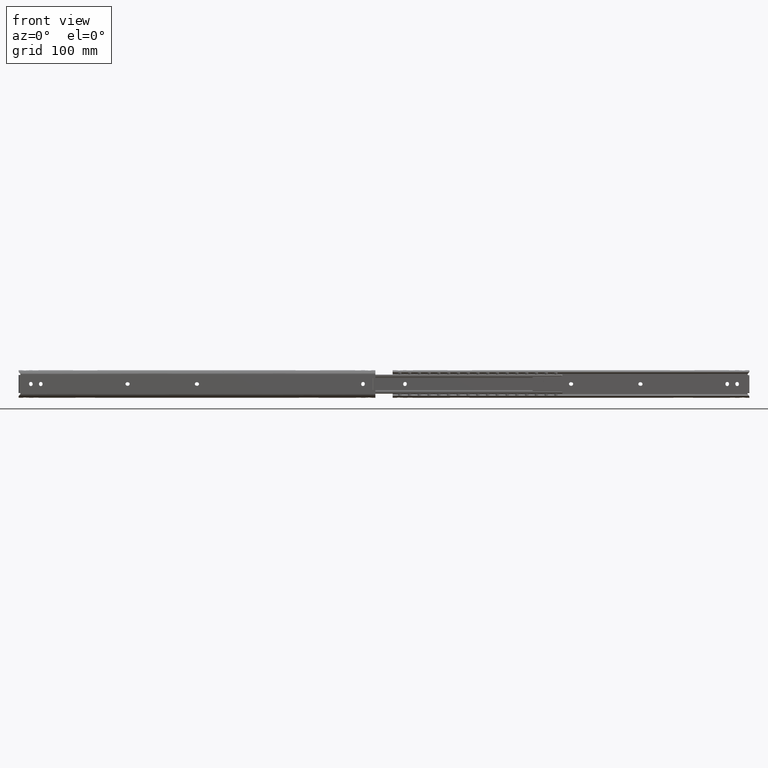
[diagram: clean part render]
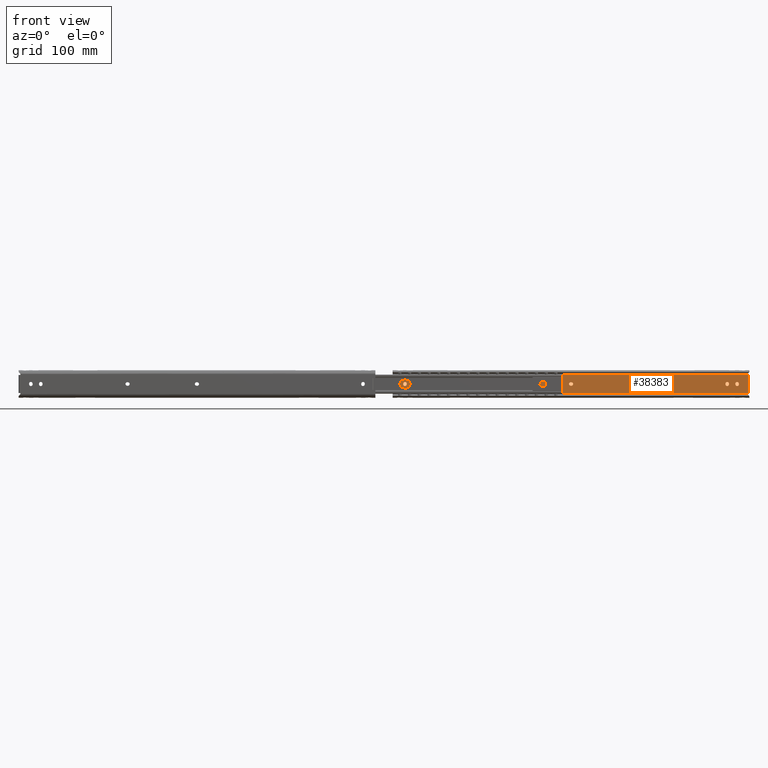
[diagram: same view with one face highlighted and labeled with its STEP entity id]
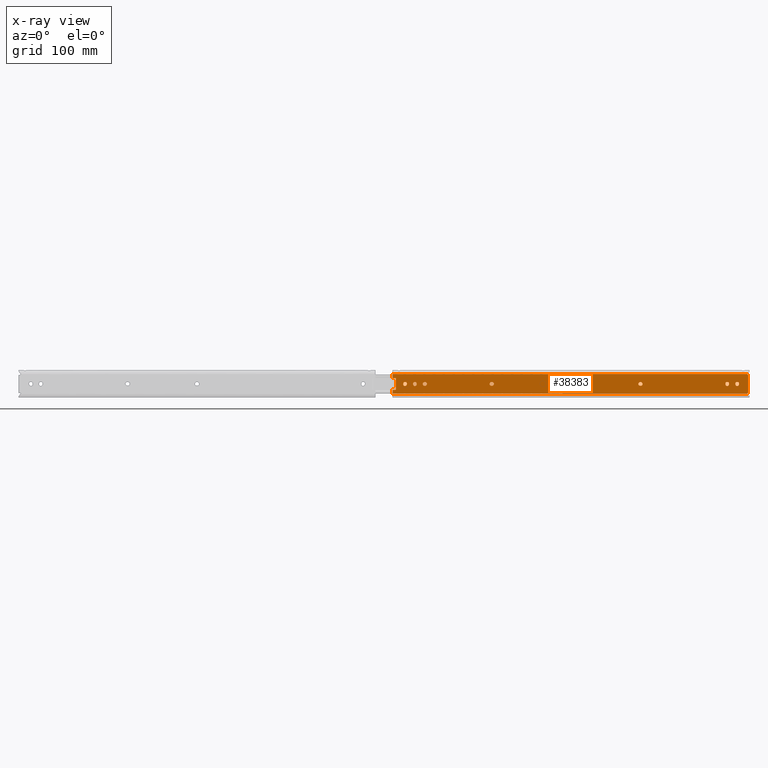
[diagram: x-ray of the same camera — body ghosted, the highlighted face saturated]
A machine part, front view. The second image highlights one B-rep face of the part: STEP entity #38383.
The next image is the same camera in x-ray: the body ghosted, the highlighted face saturated — about 0% of this face is hidden behind the body in this view.
In plain terms, the highlighted face is a freeform B-spline surface patch.
Its self-contained STEP definition (entity closure, byte-faithful):
#34844=CARTESIAN_POINT('',(-438.850000000000020,-1.600000000001045,0.400000000000006));
#34845=VERTEX_POINT('',#34844);
#34846=CARTESIAN_POINT('',(-443.350000000000020,-1.600000000001045,0.400000000000006));
#34847=VERTEX_POINT('',#34846);
#34848=CARTESIAN_POINT('',(-438.850000000000020,-1.600000000001045,0.400000000000006));
#34849=CARTESIAN_POINT('',(-438.850000000000080,-1.600000000001045,2.650000000000006));
#34850=CARTESIAN_POINT('',(-441.100000000000020,-1.600000000001045,2.650000000000005));
#34851=CARTESIAN_POINT('',(-443.349999999999970,-1.600000000001045,2.650000000000006));
#34852=CARTESIAN_POINT('',(-443.350000000000020,-1.600000000001045,0.400000000000006));
#34860=(BOUNDED_CURVE()B_SPLINE_CURVE(2,(#34848,#34849,#34850,#34851,#34852),.UNSPECIFIED.,.F.,.U.)B_SPLINE_CURVE_WITH_KNOTS((3,2,3),(0.0,0.500000000000000,1.0),.UNSPECIFIED.)CURVE()GEOMETRIC_REPRESENTATION_ITEM()RATIONAL_B_SPLINE_CURVE((1.0,0.707106781186547,1.0,0.707106781186547,1.0))REPRESENTATION_ITEM(''));
#34861=EDGE_CURVE('',#34845,#34847,#34860,.T.);
#34900=CARTESIAN_POINT('',(-438.850000000000020,-1.600000000001045,-0.400000000000092));
#34901=VERTEX_POINT('',#34900);
#34902=CARTESIAN_POINT('',(-438.850000000000020,-1.600000000001045,-0.400000000000092));
#34903=CARTESIAN_POINT('',(-438.850000000000020,-1.600000000001045,0.400000000000006));
#34904=QUASI_UNIFORM_CURVE('',1,(#34902,#34903),.UNSPECIFIED.,.F.,.U.);
#34905=EDGE_CURVE('',#34901,#34845,#34904,.T.);
#34941=CARTESIAN_POINT('',(-443.350000000000020,-1.600000000001045,-0.400000000000091));
#34942=VERTEX_POINT('',#34941);
#34943=CARTESIAN_POINT('',(-443.350000000000020,-1.600000000001045,-0.400000000000091));
#34944=CARTESIAN_POINT('',(-443.349999999999970,-1.600000000001045,-2.650000000000091));
#34945=CARTESIAN_POINT('',(-441.100000000000020,-1.600000000001045,-2.650000000000091));
#34946=CARTESIAN_POINT('',(-438.850000000000080,-1.600000000001045,-2.650000000000091));
#34947=CARTESIAN_POINT('',(-438.850000000000020,-1.600000000001045,-0.400000000000091));
#34955=(BOUNDED_CURVE()B_SPLINE_CURVE(2,(#34943,#34944,#34945,#34946,#34947),.UNSPECIFIED.,.F.,.U.)B_SPLINE_CURVE_WITH_KNOTS((3,2,3),(0.0,0.500000000000000,1.0),.UNSPECIFIED.)CURVE()GEOMETRIC_REPRESENTATION_ITEM()RATIONAL_B_SPLINE_CURVE((1.0,0.707106781186547,1.0,0.707106781186547,1.0))REPRESENTATION_ITEM(''));
#34956=EDGE_CURVE('',#34942,#34901,#34955,.T.);
#34989=CARTESIAN_POINT('',(-443.350000000000020,-1.600000000001045,0.400000000000006));
#34990=CARTESIAN_POINT('',(-443.350000000000020,-1.600000000001045,-0.400000000000091));
#34991=QUASI_UNIFORM_CURVE('',1,(#34989,#34990),.UNSPECIFIED.,.F.,.U.);
#34992=EDGE_CURVE('',#34847,#34942,#34991,.T.);
#35009=CARTESIAN_POINT('',(-430.649999999999980,-1.600000000001045,-0.400000000000091));
#35010=VERTEX_POINT('',#35009);
#35011=CARTESIAN_POINT('',(-430.649999999999980,-1.600000000001045,0.400000000000007));
#35012=VERTEX_POINT('',#35011);
#35013=CARTESIAN_POINT('',(-430.649999999999980,-1.600000000001045,-0.400000000000091));
#35014=CARTESIAN_POINT('',(-430.649999999999980,-1.600000000001045,0.400000000000007));
#35015=QUASI_UNIFORM_CURVE('',1,(#35013,#35014),.UNSPECIFIED.,.F.,.U.);
#35016=EDGE_CURVE('',#35010,#35012,#35015,.T.);
#35058=CARTESIAN_POINT('',(-426.149999999999980,-1.600000000001045,0.400000000000006));
#35059=VERTEX_POINT('',#35058);
#35060=CARTESIAN_POINT('',(-426.149999999999980,-1.600000000001045,0.400000000000006));
#35061=CARTESIAN_POINT('',(-426.149999999999980,-1.600000000001045,2.650000000000006));
#35062=CARTESIAN_POINT('',(-428.399999999999980,-1.600000000001045,2.650000000000005));
#35063=CARTESIAN_POINT('',(-430.649999999999860,-1.600000000001045,2.650000000000006));
#35064=CARTESIAN_POINT('',(-430.649999999999980,-1.600000000001045,0.400000000000006));
#35072=(BOUNDED_CURVE()B_SPLINE_CURVE(2,(#35060,#35061,#35062,#35063,#35064),.UNSPECIFIED.,.F.,.U.)B_SPLINE_CURVE_WITH_KNOTS((3,2,3),(0.0,0.500000000000000,1.0),.UNSPECIFIED.)CURVE()GEOMETRIC_REPRESENTATION_ITEM()RATIONAL_B_SPLINE_CURVE((1.0,0.707106781186547,1.0,0.707106781186547,1.0))REPRESENTATION_ITEM(''));
#35073=EDGE_CURVE('',#35059,#35012,#35072,.T.);
#35106=CARTESIAN_POINT('',(-426.149999999999980,-1.600000000001045,-0.400000000000091));
#35107=VERTEX_POINT('',#35106);
#35108=CARTESIAN_POINT('',(-426.149999999999980,-1.600000000001045,0.400000000000006));
#35109=CARTESIAN_POINT('',(-426.149999999999980,-1.600000000001045,-0.400000000000091));
#35110=QUASI_UNIFORM_CURVE('',1,(#35108,#35109),.UNSPECIFIED.,.F.,.U.);
#35111=EDGE_CURVE('',#35059,#35107,#35110,.T.);
#35147=CARTESIAN_POINT('',(-430.649999999999980,-1.600000000001045,-0.400000000000091));
#35148=CARTESIAN_POINT('',(-430.649999999999860,-1.600000000001045,-2.650000000000091));
#35149=CARTESIAN_POINT('',(-428.399999999999980,-1.600000000001045,-2.650000000000091));
#35150=CARTESIAN_POINT('',(-426.149999999999980,-1.600000000001045,-2.650000000000091));
#35151=CARTESIAN_POINT('',(-426.149999999999980,-1.600000000001045,-0.400000000000091));
#35159=(BOUNDED_CURVE()B_SPLINE_CURVE(2,(#35147,#35148,#35149,#35150,#35151),.UNSPECIFIED.,.F.,.U.)B_SPLINE_CURVE_WITH_KNOTS((3,2,3),(0.0,0.500000000000000,1.0),.UNSPECIFIED.)CURVE()GEOMETRIC_REPRESENTATION_ITEM()RATIONAL_B_SPLINE_CURVE((1.0,0.707106781186547,1.0,0.707106781186547,1.0))REPRESENTATION_ITEM(''));
#35160=EDGE_CURVE('',#35010,#35107,#35159,.T.);
#35200=CARTESIAN_POINT('',(-415.300000000000010,-1.600000000001045,-2.250000000000000));
#35201=VERTEX_POINT('',#35200);
#35202=CARTESIAN_POINT('',(-415.300000000000010,-1.600000000001045,2.250000000000000));
#35203=VERTEX_POINT('',#35202);
#35204=CARTESIAN_POINT('',(-415.300000000000010,-1.600000000001045,-2.250000000000000));
#35205=CARTESIAN_POINT('',(-413.050000000000070,-1.600000000001045,-2.250000000000000));
#35206=CARTESIAN_POINT('',(-413.050000000000010,-1.600000000001045,0.0));
#35207=CARTESIAN_POINT('',(-413.050000000000070,-1.600000000001045,2.250000000000000));
#35208=CARTESIAN_POINT('',(-415.300000000000010,-1.600000000001045,2.250000000000000));
#35216=(BOUNDED_CURVE()B_SPLINE_CURVE(2,(#35204,#35205,#35206,#35207,#35208),.UNSPECIFIED.,.F.,.U.)B_SPLINE_CURVE_WITH_KNOTS((3,2,3),(0.0,0.500000000000000,1.0),.UNSPECIFIED.)CURVE()GEOMETRIC_REPRESENTATION_ITEM()RATIONAL_B_SPLINE_CURVE((1.0,0.707106781186547,1.0,0.707106781186547,1.0))REPRESENTATION_ITEM(''));
#35217=EDGE_CURVE('',#35201,#35203,#35216,.T.);
#35256=CARTESIAN_POINT('',(-416.100000000000020,-1.600000000001045,2.250000000000000));
#35257=VERTEX_POINT('',#35256);
#35258=CARTESIAN_POINT('',(-416.100000000000020,-1.600000000001045,2.250000000000000));
#35259=CARTESIAN_POINT('',(-415.300000000000010,-1.600000000001045,2.250000000000000));
#35260=QUASI_UNIFORM_CURVE('',1,(#35258,#35259),.UNSPECIFIED.,.F.,.U.);
#35261=EDGE_CURVE('',#35257,#35203,#35260,.T.);
#35297=CARTESIAN_POINT('',(-416.100000000000020,-1.600000000001045,-2.250000000000000));
#35298=VERTEX_POINT('',#35297);
#35299=CARTESIAN_POINT('',(-416.100000000000020,-1.600000000001045,2.250000000000000));
#35300=CARTESIAN_POINT('',(-418.349999999999970,-1.600000000001045,2.250000000000000));
#35301=CARTESIAN_POINT('',(-418.350000000000020,-1.600000000001045,0.0));
#35302=CARTESIAN_POINT('',(-418.349999999999970,-1.600000000001045,-2.250000000000000));
#35303=CARTESIAN_POINT('',(-416.100000000000020,-1.600000000001045,-2.250000000000000));
#35311=(BOUNDED_CURVE()B_SPLINE_CURVE(2,(#35299,#35300,#35301,#35302,#35303),.UNSPECIFIED.,.F.,.U.)B_SPLINE_CURVE_WITH_KNOTS((3,2,3),(0.0,0.500000000000000,1.0),.UNSPECIFIED.)CURVE()GEOMETRIC_REPRESENTATION_ITEM()RATIONAL_B_SPLINE_CURVE((1.0,0.707106781186547,1.0,0.707106781186547,1.0))REPRESENTATION_ITEM(''));
#35312=EDGE_CURVE('',#35257,#35298,#35311,.T.);
#35345=CARTESIAN_POINT('',(-415.300000000000010,-1.600000000001045,-2.250000000000000));
#35346=CARTESIAN_POINT('',(-416.100000000000020,-1.600000000001045,-2.250000000000000));
#35347=QUASI_UNIFORM_CURVE('',1,(#35345,#35346),.UNSPECIFIED.,.F.,.U.);
#35348=EDGE_CURVE('',#35201,#35298,#35347,.T.);
#35378=CARTESIAN_POINT('',(-330.399999999999980,-1.600000000001045,2.250000000000000));
#35379=VERTEX_POINT('',#35378);
#35380=CARTESIAN_POINT('',(-330.399999999999980,-1.600000000001045,-2.250000000000000));
#35381=VERTEX_POINT('',#35380);
#35382=CARTESIAN_POINT('',(-330.399999999999980,-1.600000000001045,2.250000000000000));
#35383=CARTESIAN_POINT('',(-332.649999999999980,-1.600000000001045,2.250000000000000));
#35384=CARTESIAN_POINT('',(-332.649999999999980,-1.600000000001045,0.0));
#35385=CARTESIAN_POINT('',(-332.649999999999980,-1.600000000001045,-2.250000000000000));
#35386=CARTESIAN_POINT('',(-330.399999999999980,-1.600000000001045,-2.250000000000000));
#35394=(BOUNDED_CURVE()B_SPLINE_CURVE(2,(#35382,#35383,#35384,#35385,#35386),.UNSPECIFIED.,.F.,.U.)B_SPLINE_CURVE_WITH_KNOTS((3,2,3),(0.0,0.500000000000000,1.0),.UNSPECIFIED.)CURVE()GEOMETRIC_REPRESENTATION_ITEM()RATIONAL_B_SPLINE_CURVE((1.0,0.707106781186547,1.0,0.707106781186547,1.0))REPRESENTATION_ITEM(''));
#35395=EDGE_CURVE('',#35379,#35381,#35394,.T.);
#35434=CARTESIAN_POINT('',(-329.600000000000020,-1.600000000001045,2.250000000000000));
#35435=VERTEX_POINT('',#35434);
#35436=CARTESIAN_POINT('',(-329.600000000000020,-1.600000000001045,2.250000000000000));
#35437=CARTESIAN_POINT('',(-330.399999999999980,-1.600000000001045,2.250000000000000));
#35438=QUASI_UNIFORM_CURVE('',1,(#35436,#35437),.UNSPECIFIED.,.F.,.U.);
#35439=EDGE_CURVE('',#35435,#35379,#35438,.T.);
#35475=CARTESIAN_POINT('',(-329.600000000000020,-1.600000000001045,-2.250000000000000));
#35476=VERTEX_POINT('',#35475);
#35477=CARTESIAN_POINT('',(-329.600000000000020,-1.600000000001045,-2.250000000000000));
#35478=CARTESIAN_POINT('',(-327.349999999999970,-1.600000000001045,-2.250000000000000));
#35479=CARTESIAN_POINT('',(-327.350000000000020,-1.600000000001045,0.0));
#35480=CARTESIAN_POINT('',(-327.349999999999970,-1.600000000001045,2.250000000000000));
#35481=CARTESIAN_POINT('',(-329.600000000000020,-1.600000000001045,2.250000000000000));
#35489=(BOUNDED_CURVE()B_SPLINE_CURVE(2,(#35477,#35478,#35479,#35480,#35481),.UNSPECIFIED.,.F.,.U.)B_SPLINE_CURVE_WITH_KNOTS((3,2,3),(0.0,0.500000000000000,1.0),.UNSPECIFIED.)CURVE()GEOMETRIC_REPRESENTATION_ITEM()RATIONAL_B_SPLINE_CURVE((1.0,0.707106781186547,1.0,0.707106781186547,1.0))REPRESENTATION_ITEM(''));
#35490=EDGE_CURVE('',#35476,#35435,#35489,.T.);
#35523=CARTESIAN_POINT('',(-330.399999999999980,-1.600000000001045,-2.250000000000000));
#35524=CARTESIAN_POINT('',(-329.600000000000020,-1.600000000001045,-2.250000000000000));
#35525=QUASI_UNIFORM_CURVE('',1,(#35523,#35524),.UNSPECIFIED.,.F.,.U.);
#35526=EDGE_CURVE('',#35381,#35476,#35525,.T.);
#35543=CARTESIAN_POINT('',(-139.899999999997990,-1.600000000001045,2.250000000000000));
#35544=VERTEX_POINT('',#35543);
#35545=CARTESIAN_POINT('',(-139.099999999998000,-1.600000000001045,2.250000000000000));
#35546=VERTEX_POINT('',#35545);
#35547=CARTESIAN_POINT('',(-139.899999999997990,-1.600000000001045,2.250000000000000));
#35548=CARTESIAN_POINT('',(-139.099999999998000,-1.600000000001045,2.250000000000000));
#35549=QUASI_UNIFORM_CURVE('',1,(#35547,#35548),.UNSPECIFIED.,.F.,.U.);
#35550=EDGE_CURVE('',#35544,#35546,#35549,.T.);
#35592=CARTESIAN_POINT('',(-139.099999999998000,-1.600000000001045,-2.250000000000000));
#35593=VERTEX_POINT('',#35592);
#35594=CARTESIAN_POINT('',(-139.099999999998000,-1.600000000001045,-2.250000000000000));
#35595=CARTESIAN_POINT('',(-136.849999999998000,-1.600000000001045,-2.250000000000000));
#35596=CARTESIAN_POINT('',(-136.849999999998000,-1.600000000001045,0.0));
#35597=CARTESIAN_POINT('',(-136.849999999998000,-1.600000000001045,2.250000000000000));
#35598=CARTESIAN_POINT('',(-139.099999999998000,-1.600000000001045,2.250000000000000));
#35606=(BOUNDED_CURVE()B_SPLINE_CURVE(2,(#35594,#35595,#35596,#35597,#35598),.UNSPECIFIED.,.F.,.U.)B_SPLINE_CURVE_WITH_KNOTS((3,2,3),(0.0,0.500000000000000,1.0),.UNSPECIFIED.)CURVE()GEOMETRIC_REPRESENTATION_ITEM()RATIONAL_B_SPLINE_CURVE((1.0,0.707106781186547,1.0,0.707106781186547,1.0))REPRESENTATION_ITEM(''));
#35607=EDGE_CURVE('',#35593,#35546,#35606,.T.);
#35640=CARTESIAN_POINT('',(-139.899999999997990,-1.600000000001045,-2.250000000000200));
#35641=VERTEX_POINT('',#35640);
#35642=CARTESIAN_POINT('',(-139.099999999998000,-1.600000000001045,-2.250000000000000));
#35643=CARTESIAN_POINT('',(-139.899999999997990,-1.600000000001045,-2.250000000000200));
#35644=QUASI_UNIFORM_CURVE('',1,(#35642,#35643),.UNSPECIFIED.,.F.,.U.);
#35645=EDGE_CURVE('',#35593,#35641,#35644,.T.);
#35681=CARTESIAN_POINT('',(-139.899999999997990,-1.600000000001045,2.250000000000000));
#35682=CARTESIAN_POINT('',(-142.149999999997990,-1.600000000001045,2.250000000000000));
#35683=CARTESIAN_POINT('',(-142.149999999997990,-1.600000000001045,0.0));
#35684=CARTESIAN_POINT('',(-142.149999999997990,-1.600000000001045,-2.250000000000000));
#35685=CARTESIAN_POINT('',(-139.899999999997990,-1.600000000001045,-2.250000000000000));
#35693=(BOUNDED_CURVE()B_SPLINE_CURVE(2,(#35681,#35682,#35683,#35684,#35685),.UNSPECIFIED.,.F.,.U.)B_SPLINE_CURVE_WITH_KNOTS((3,2,3),(0.0,0.500000000000000,1.0),.UNSPECIFIED.)CURVE()GEOMETRIC_REPRESENTATION_ITEM()RATIONAL_B_SPLINE_CURVE((1.0,0.707106781186547,1.0,0.707106781186547,1.0))REPRESENTATION_ITEM(''));
#35694=EDGE_CURVE('',#35544,#35641,#35693,.T.);
#35734=CARTESIAN_POINT('',(-228.800000000000010,-1.600000000001045,2.250000000000000));
#35735=VERTEX_POINT('',#35734);
#35736=CARTESIAN_POINT('',(-228.800000000000010,-1.600000000001045,-2.250000000000000));
#35737=VERTEX_POINT('',#35736);
#35738=CARTESIAN_POINT('',(-228.800000000000010,-1.600000000001045,2.250000000000000));
#35739=CARTESIAN_POINT('',(-231.050000000000040,-1.600000000001045,2.250000000000000));
#35740=CARTESIAN_POINT('',(-231.050000000000010,-1.600000000001045,0.0));
#35741=CARTESIAN_POINT('',(-231.050000000000040,-1.600000000001045,-2.250000000000000));
#35742=CARTESIAN_POINT('',(-228.800000000000010,-1.600000000001045,-2.250000000000000));
#35750=(BOUNDED_CURVE()B_SPLINE_CURVE(2,(#35738,#35739,#35740,#35741,#35742),.UNSPECIFIED.,.F.,.U.)B_SPLINE_CURVE_WITH_KNOTS((3,2,3),(0.0,0.500000000000000,1.0),.UNSPECIFIED.)CURVE()GEOMETRIC_REPRESENTATION_ITEM()RATIONAL_B_SPLINE_CURVE((1.0,0.707106781186547,1.0,0.707106781186547,1.0))REPRESENTATION_ITEM(''));
#35751=EDGE_CURVE('',#35735,#35737,#35750,.T.);
#35790=CARTESIAN_POINT('',(-228.0,-1.600000000001045,2.250000000000000));
#35791=VERTEX_POINT('',#35790);
#35792=CARTESIAN_POINT('',(-228.0,-1.600000000001045,2.250000000000000));
#35793=CARTESIAN_POINT('',(-228.800000000000010,-1.600000000001045,2.250000000000000));
#35794=QUASI_UNIFORM_CURVE('',1,(#35792,#35793),.UNSPECIFIED.,.F.,.U.);
#35795=EDGE_CURVE('',#35791,#35735,#35794,.T.);
#35831=CARTESIAN_POINT('',(-228.0,-1.600000000001045,-2.250000000000000));
#35832=VERTEX_POINT('',#35831);
#35833=CARTESIAN_POINT('',(-228.0,-1.600000000001045,-2.250000000000000));
#35834=CARTESIAN_POINT('',(-225.750000000000030,-1.600000000001045,-2.250000000000000));
#35835=CARTESIAN_POINT('',(-225.750000000000000,-1.600000000001045,0.0));
#35836=CARTESIAN_POINT('',(-225.750000000000030,-1.600000000001045,2.250000000000000));
#35837=CARTESIAN_POINT('',(-228.0,-1.600000000001045,2.250000000000000));
#35845=(BOUNDED_CURVE()B_SPLINE_CURVE(2,(#35833,#35834,#35835,#35836,#35837),.UNSPECIFIED.,.F.,.U.)B_SPLINE_CURVE_WITH_KNOTS((3,2,3),(0.0,0.500000000000000,1.0),.UNSPECIFIED.)CURVE()GEOMETRIC_REPRESENTATION_ITEM()RATIONAL_B_SPLINE_CURVE((1.0,0.707106781186547,1.0,0.707106781186547,1.0))REPRESENTATION_ITEM(''));
#35846=EDGE_CURVE('',#35832,#35791,#35845,.T.);
#35879=CARTESIAN_POINT('',(-228.800000000000010,-1.600000000001045,-2.250000000000000));
#35880=CARTESIAN_POINT('',(-228.0,-1.600000000001045,-2.250000000000000));
#35881=QUASI_UNIFORM_CURVE('',1,(#35879,#35880),.UNSPECIFIED.,.F.,.U.);
#35882=EDGE_CURVE('',#35737,#35832,#35881,.T.);
#35912=CARTESIAN_POINT('',(-13.449999999998001,-1.600000000001045,0.400000000000006));
#35913=VERTEX_POINT('',#35912);
#35914=CARTESIAN_POINT('',(-17.949999999997999,-1.600000000001045,0.400000000000006));
#35915=VERTEX_POINT('',#35914);
#35916=CARTESIAN_POINT('',(-13.449999999998001,-1.600000000001045,0.400000000000006));
#35917=CARTESIAN_POINT('',(-13.449999999998001,-1.600000000001045,2.650000000000006));
#35918=CARTESIAN_POINT('',(-15.699999999998001,-1.600000000001045,2.650000000000005));
#35919=CARTESIAN_POINT('',(-17.949999999997996,-1.600000000001045,2.650000000000006));
#35920=CARTESIAN_POINT('',(-17.949999999997999,-1.600000000001045,0.400000000000006));
#35928=(BOUNDED_CURVE()B_SPLINE_CURVE(2,(#35916,#35917,#35918,#35919,#35920),.UNSPECIFIED.,.F.,.U.)B_SPLINE_CURVE_WITH_KNOTS((3,2,3),(0.0,0.500000000000000,1.0),.UNSPECIFIED.)CURVE()GEOMETRIC_REPRESENTATION_ITEM()RATIONAL_B_SPLINE_CURVE((1.0,0.707106781186547,1.0,0.707106781186547,1.0))REPRESENTATION_ITEM(''));
#35929=EDGE_CURVE('',#35913,#35915,#35928,.T.);
#35968=CARTESIAN_POINT('',(-17.949999999997999,-1.600000000001045,-0.400000000000091));
#35969=VERTEX_POINT('',#35968);
#35970=CARTESIAN_POINT('',(-17.949999999997999,-1.600000000001045,-0.400000000000091));
#35971=CARTESIAN_POINT('',(-17.949999999997999,-1.600000000001045,0.400000000000006));
#35972=QUASI_UNIFORM_CURVE('',1,(#35970,#35971),.UNSPECIFIED.,.F.,.U.);
#35973=EDGE_CURVE('',#35969,#35915,#35972,.T.);
#36009=CARTESIAN_POINT('',(-13.449999999998001,-1.600000000001045,-0.400000000000091));
#36010=VERTEX_POINT('',#36009);
#36011=CARTESIAN_POINT('',(-17.949999999997999,-1.600000000001045,-0.400000000000091));
#36012=CARTESIAN_POINT('',(-17.949999999997996,-1.600000000001045,-2.650000000000091));
#36013=CARTESIAN_POINT('',(-15.699999999998001,-1.600000000001045,-2.650000000000091));
#36014=CARTESIAN_POINT('',(-13.449999999998001,-1.600000000001045,-2.650000000000091));
#36015=CARTESIAN_POINT('',(-13.449999999998001,-1.600000000001045,-0.400000000000091));
#36023=(BOUNDED_CURVE()B_SPLINE_CURVE(2,(#36011,#36012,#36013,#36014,#36015),.UNSPECIFIED.,.F.,.U.)B_SPLINE_CURVE_WITH_KNOTS((3,2,3),(0.0,0.500000000000000,1.0),.UNSPECIFIED.)CURVE()GEOMETRIC_REPRESENTATION_ITEM()RATIONAL_B_SPLINE_CURVE((1.0,0.707106781186547,1.0,0.707106781186547,1.0))REPRESENTATION_ITEM(''));
#36024=EDGE_CURVE('',#35969,#36010,#36023,.T.);
#36057=CARTESIAN_POINT('',(-13.449999999998001,-1.600000000001045,0.400000000000006));
#36058=CARTESIAN_POINT('',(-13.449999999998001,-1.600000000001045,-0.400000000000091));
#36059=QUASI_UNIFORM_CURVE('',1,(#36057,#36058),.UNSPECIFIED.,.F.,.U.);
#36060=EDGE_CURVE('',#35913,#36010,#36059,.T.);
#36077=CARTESIAN_POINT('',(-26.149999999998052,-1.600000000001045,0.400000000000006));
#36078=VERTEX_POINT('',#36077);
#36079=CARTESIAN_POINT('',(-26.149999999997998,-1.600000000001045,-0.400000000000092));
#36080=VERTEX_POINT('',#36079);
#36081=CARTESIAN_POINT('',(-26.149999999998052,-1.600000000001045,0.400000000000006));
#36082=CARTESIAN_POINT('',(-26.149999999997998,-1.600000000001045,-0.400000000000092));
#36083=QUASI_UNIFORM_CURVE('',1,(#36081,#36082),.UNSPECIFIED.,.F.,.U.);
#36084=EDGE_CURVE('',#36078,#36080,#36083,.T.);
#36126=CARTESIAN_POINT('',(-30.649999999998052,-1.600000000001045,-0.400000000000091));
#36127=VERTEX_POINT('',#36126);
#36128=CARTESIAN_POINT('',(-30.649999999998052,-1.600000000001045,-0.400000000000091));
#36129=CARTESIAN_POINT('',(-30.649999999998052,-1.600000000001045,-2.650000000000091));
#36130=CARTESIAN_POINT('',(-28.399999999998052,-1.600000000001045,-2.650000000000091));
#36131=CARTESIAN_POINT('',(-26.149999999998055,-1.600000000001045,-2.650000000000091));
#36132=CARTESIAN_POINT('',(-26.149999999998052,-1.600000000001045,-0.400000000000091));
#36140=(BOUNDED_CURVE()B_SPLINE_CURVE(2,(#36128,#36129,#36130,#36131,#36132),.UNSPECIFIED.,.F.,.U.)B_SPLINE_CURVE_WITH_KNOTS((3,2,3),(0.0,0.500000000000000,1.0),.UNSPECIFIED.)CURVE()GEOMETRIC_REPRESENTATION_ITEM()RATIONAL_B_SPLINE_CURVE((1.0,0.707106781186547,1.0,0.707106781186547,1.0))REPRESENTATION_ITEM(''));
#36141=EDGE_CURVE('',#36127,#36080,#36140,.T.);
#36174=CARTESIAN_POINT('',(-30.649999999998052,-1.600000000001045,0.400000000000006));
#36175=VERTEX_POINT('',#36174);
#36176=CARTESIAN_POINT('',(-30.649999999998052,-1.600000000001045,-0.400000000000091));
#36177=CARTESIAN_POINT('',(-30.649999999998052,-1.600000000001045,0.400000000000006));
#36178=QUASI_UNIFORM_CURVE('',1,(#36176,#36177),.UNSPECIFIED.,.F.,.U.);
#36179=EDGE_CURVE('',#36127,#36175,#36178,.T.);
#36215=CARTESIAN_POINT('',(-26.149999999998052,-1.600000000001045,0.400000000000006));
#36216=CARTESIAN_POINT('',(-26.149999999998055,-1.600000000001045,2.650000000000006));
#36217=CARTESIAN_POINT('',(-28.399999999998052,-1.600000000001045,2.650000000000005));
#36218=CARTESIAN_POINT('',(-30.649999999998052,-1.600000000001045,2.650000000000006));
#36219=CARTESIAN_POINT('',(-30.649999999998052,-1.600000000001045,0.400000000000006));
#36227=(BOUNDED_CURVE()B_SPLINE_CURVE(2,(#36215,#36216,#36217,#36218,#36219),.UNSPECIFIED.,.F.,.U.)B_SPLINE_CURVE_WITH_KNOTS((3,2,3),(0.0,0.500000000000000,1.0),.UNSPECIFIED.)CURVE()GEOMETRIC_REPRESENTATION_ITEM()RATIONAL_B_SPLINE_CURVE((1.0,0.707106781186547,1.0,0.707106781186547,1.0))REPRESENTATION_ITEM(''));
#36228=EDGE_CURVE('',#36078,#36175,#36227,.T.);
#36699=CARTESIAN_POINT('',(-454.500000000000000,-1.600000000001045,7.500000000000000));
#36700=VERTEX_POINT('',#36699);
#36721=CARTESIAN_POINT('',(-454.500000000000000,-1.600000000000935,-7.500000000000200));
#36722=VERTEX_POINT('',#36721);
#36751=CARTESIAN_POINT('',(-1.599999999999045,-1.600000000001045,-11.500000000000000));
#36752=VERTEX_POINT('',#36751);
#36753=CARTESIAN_POINT('',(-1.599999999999000,-1.600000000001045,11.500000000000000));
#36754=VERTEX_POINT('',#36753);
#36755=CARTESIAN_POINT('',(-1.599999999999045,-1.600000000001045,-11.500000000000000));
#36756=CARTESIAN_POINT('',(-1.599999999999000,-1.600000000001045,11.500000000000000));
#36757=QUASI_UNIFORM_CURVE('',1,(#36755,#36756),.UNSPECIFIED.,.F.,.U.);
#36758=EDGE_CURVE('',#36752,#36754,#36757,.T.);
#36925=CARTESIAN_POINT('',(-452.899999999999980,-1.600000000001045,-7.500000000000200));
#36926=VERTEX_POINT('',#36925);
#36932=CARTESIAN_POINT('',(-452.899999999999980,-1.600000000001045,7.500000000000000));
#36933=VERTEX_POINT('',#36932);
#36934=CARTESIAN_POINT('',(-452.899999999999980,-1.600000000001045,-7.500000000000200));
#36935=CARTESIAN_POINT('',(-452.899999999999980,-1.600000000001045,7.500000000000000));
#36936=QUASI_UNIFORM_CURVE('',1,(#36934,#36935),.UNSPECIFIED.,.F.,.U.);
#36937=EDGE_CURVE('',#36926,#36933,#36936,.T.);
#36959=CARTESIAN_POINT('',(-452.899999999999980,-1.600000000001045,-7.500000000000200));
#36960=CARTESIAN_POINT('',(-454.500000000000000,-1.600000000000935,-7.500000000000200));
#36961=QUASI_UNIFORM_CURVE('',1,(#36959,#36960),.UNSPECIFIED.,.F.,.U.);
#36962=EDGE_CURVE('',#36926,#36722,#36961,.T.);
#37007=CARTESIAN_POINT('',(-454.500000000000000,-1.600000000001045,7.500000000000000));
#37008=CARTESIAN_POINT('',(-452.899999999999980,-1.600000000001045,7.500000000000000));
#37009=QUASI_UNIFORM_CURVE('',1,(#37007,#37008),.UNSPECIFIED.,.F.,.U.);
#37010=EDGE_CURVE('',#36700,#36933,#37009,.T.);
#37057=CARTESIAN_POINT('',(-2.360134746259245,-1.600000000000045,12.578915999999900));
#37058=VERTEX_POINT('',#37057);
#37059=CARTESIAN_POINT('',(-2.360134746259245,-1.600000000000045,12.578915999999900));
#37060=CARTESIAN_POINT('',(-2.501066018638392,-1.600000000001046,12.184613891433314));
#37061=CARTESIAN_POINT('',(-2.259898584542075,-1.600000000001045,11.842306945716651));
#37062=CARTESIAN_POINT('',(-2.018731150445758,-1.600000000001046,11.500000000000002));
#37063=CARTESIAN_POINT('',(-1.599999999999000,-1.600000000001045,11.500000000000000));
#37071=(BOUNDED_CURVE()B_SPLINE_CURVE(2,(#37059,#37060,#37061,#37062,#37063),.UNSPECIFIED.,.F.,.U.)B_SPLINE_CURVE_WITH_KNOTS((3,2,3),(0.0,0.500000000000000,1.0),.UNSPECIFIED.)CURVE()GEOMETRIC_REPRESENTATION_ITEM()RATIONAL_B_SPLINE_CURVE((1.0,0.887679040060814,1.0,0.887679040060814,1.0))REPRESENTATION_ITEM(''));
#37072=EDGE_CURVE('',#37058,#36754,#37071,.T.);
#37334=CARTESIAN_POINT('',(-2.360134746259215,-1.600000000000045,-12.578916000000000));
#37335=VERTEX_POINT('',#37334);
#37336=CARTESIAN_POINT('',(-1.599999999999045,-1.600000000001045,-11.500000000000000));
#37337=CARTESIAN_POINT('',(-2.018731150445805,-1.600000000001045,-11.499999999999995));
#37338=CARTESIAN_POINT('',(-2.259898584542118,-1.600000000001045,-11.842306945716709));
#37339=CARTESIAN_POINT('',(-2.501066018638415,-1.600000000001045,-12.184613891433402));
#37340=CARTESIAN_POINT('',(-2.360134746259215,-1.600000000000045,-12.578916000000000));
#37348=(BOUNDED_CURVE()B_SPLINE_CURVE(2,(#37336,#37337,#37338,#37339,#37340),.UNSPECIFIED.,.F.,.U.)B_SPLINE_CURVE_WITH_KNOTS((3,2,3),(0.0,0.500000000000000,1.0),.UNSPECIFIED.)CURVE()GEOMETRIC_REPRESENTATION_ITEM()RATIONAL_B_SPLINE_CURVE((1.0,0.887679040060793,1.0,0.887679040060793,1.0))REPRESENTATION_ITEM(''));
#37349=EDGE_CURVE('',#36752,#37335,#37348,.T.);
#37577=CARTESIAN_POINT('',(-457.0,-1.600000000001045,-7.500000000000200));
#37578=VERTEX_POINT('',#37577);
#37579=CARTESIAN_POINT('',(-454.500000000000000,-1.600000000000935,-7.500000000000200));
#37580=CARTESIAN_POINT('',(-457.0,-1.600000000001045,-7.500000000000200));
#37581=QUASI_UNIFORM_CURVE('',1,(#37579,#37580),.UNSPECIFIED.,.F.,.U.);
#37582=EDGE_CURVE('',#36722,#37578,#37581,.T.);
#37617=CARTESIAN_POINT('',(-457.0,-1.600000000001045,7.500000000000000));
#37618=VERTEX_POINT('',#37617);
#37619=CARTESIAN_POINT('',(-457.0,-1.600000000001045,7.500000000000000));
#37620=CARTESIAN_POINT('',(-454.500000000000000,-1.600000000001045,7.500000000000000));
#37621=QUASI_UNIFORM_CURVE('',1,(#37619,#37620),.UNSPECIFIED.,.F.,.U.);
#37622=EDGE_CURVE('',#37618,#36700,#37621,.T.);
#37896=CARTESIAN_POINT('',(-457.0,-1.600000000001045,-12.578916000000000));
#37897=VERTEX_POINT('',#37896);
#37898=CARTESIAN_POINT('',(-457.0,-1.600000000001045,-12.578916000000000));
#37899=CARTESIAN_POINT('',(-2.360134746259215,-1.600000000000045,-12.578916000000000));
#37900=QUASI_UNIFORM_CURVE('',1,(#37898,#37899),.UNSPECIFIED.,.F.,.U.);
#37901=EDGE_CURVE('',#37897,#37335,#37900,.T.);
#37934=CARTESIAN_POINT('',(-457.0,-1.600000000000045,12.578915999999900));
#37935=VERTEX_POINT('',#37934);
#37936=CARTESIAN_POINT('',(-457.0,-1.600000000000045,12.578915999999900));
#37937=CARTESIAN_POINT('',(-2.360134746259245,-1.600000000000045,12.578915999999900));
#37938=QUASI_UNIFORM_CURVE('',1,(#37936,#37937),.UNSPECIFIED.,.F.,.U.);
#37939=EDGE_CURVE('',#37935,#37058,#37938,.T.);
#38010=CARTESIAN_POINT('',(-457.0,-1.600000000001045,-7.500000000000200));
#38011=CARTESIAN_POINT('',(-457.0,-1.600000000001045,-12.578916000000000));
#38012=QUASI_UNIFORM_CURVE('',1,(#38010,#38011),.UNSPECIFIED.,.F.,.U.);
#38013=EDGE_CURVE('',#37578,#37897,#38012,.T.);
#38076=CARTESIAN_POINT('',(-457.0,-1.600000000000045,12.578915999999900));
#38077=CARTESIAN_POINT('',(-457.0,-1.600000000001045,7.500000000000000));
#38078=QUASI_UNIFORM_CURVE('',1,(#38076,#38077),.UNSPECIFIED.,.F.,.U.);
#38079=EDGE_CURVE('',#37935,#37618,#38078,.T.);
#38316=CARTESIAN_POINT('',(-479.747229117346480,-1.600000000001045,13.835549333593960));
#38317=CARTESIAN_POINT('',(-479.747229117346480,-1.600000000001045,-13.835548433879881));
#38318=CARTESIAN_POINT('',(21.147241332127319,-1.600000000001045,13.835549333593960));
#38319=CARTESIAN_POINT('',(21.147241332127319,-1.600000000001045,-13.835548433879881));
#38320=B_SPLINE_SURFACE_WITH_KNOTS('',1,1,((#38316,#38318),(#38317,#38319)),.UNSPECIFIED.,.F.,.F.,.U.,(2,2),(2,2),(0.0,27.671097767473839),(0.0,500.894470449473770),.UNSPECIFIED.);
#38321=ORIENTED_EDGE('',*,*,#37349,.F.);
#38322=ORIENTED_EDGE('',*,*,#36758,.T.);
#38323=ORIENTED_EDGE('',*,*,#37072,.F.);
#38324=ORIENTED_EDGE('',*,*,#37939,.F.);
#38325=ORIENTED_EDGE('',*,*,#38079,.T.);
#38326=ORIENTED_EDGE('',*,*,#37622,.T.);
#38327=ORIENTED_EDGE('',*,*,#37010,.T.);
#38328=ORIENTED_EDGE('',*,*,#36937,.F.);
#38329=ORIENTED_EDGE('',*,*,#36962,.T.);
#38330=ORIENTED_EDGE('',*,*,#37582,.T.);
#38331=ORIENTED_EDGE('',*,*,#38013,.T.);
#38332=ORIENTED_EDGE('',*,*,#37901,.T.);
#38333=EDGE_LOOP('',(#38321,#38322,#38323,#38324,#38325,#38326,#38327,#38328,#38329,#38330,#38331,#38332));
#38334=FACE_OUTER_BOUND('',#38333,.T.);
#38335=ORIENTED_EDGE('',*,*,#35160,.F.);
#38336=ORIENTED_EDGE('',*,*,#35016,.T.);
#38337=ORIENTED_EDGE('',*,*,#35073,.F.);
#38338=ORIENTED_EDGE('',*,*,#35111,.T.);
#38339=EDGE_LOOP('',(#38335,#38336,#38337,#38338));
#38340=FACE_BOUND('',#38339,.T.);
#38341=ORIENTED_EDGE('',*,*,#35929,.F.);
#38342=ORIENTED_EDGE('',*,*,#36060,.T.);
#38343=ORIENTED_EDGE('',*,*,#36024,.F.);
#38344=ORIENTED_EDGE('',*,*,#35973,.T.);
#38345=EDGE_LOOP('',(#38341,#38342,#38343,#38344));
#38346=FACE_BOUND('',#38345,.T.);
#38347=ORIENTED_EDGE('',*,*,#36228,.F.);
#38348=ORIENTED_EDGE('',*,*,#36084,.T.);
#38349=ORIENTED_EDGE('',*,*,#36141,.F.);
#38350=ORIENTED_EDGE('',*,*,#36179,.T.);
#38351=EDGE_LOOP('',(#38347,#38348,#38349,#38350));
#38352=FACE_BOUND('',#38351,.T.);
#38353=ORIENTED_EDGE('',*,*,#34992,.F.);
#38354=ORIENTED_EDGE('',*,*,#34861,.F.);
#38355=ORIENTED_EDGE('',*,*,#34905,.F.);
#38356=ORIENTED_EDGE('',*,*,#34956,.F.);
#38357=EDGE_LOOP('',(#38353,#38354,#38355,#38356));
#38358=FACE_BOUND('',#38357,.T.);
#38359=ORIENTED_EDGE('',*,*,#35882,.F.);
#38360=ORIENTED_EDGE('',*,*,#35751,.F.);
#38361=ORIENTED_EDGE('',*,*,#35795,.F.);
#38362=ORIENTED_EDGE('',*,*,#35846,.F.);
#38363=EDGE_LOOP('',(#38359,#38360,#38361,#38362));
#38364=FACE_BOUND('',#38363,.T.);
#38365=ORIENTED_EDGE('',*,*,#35694,.F.);
#38366=ORIENTED_EDGE('',*,*,#35550,.T.);
#38367=ORIENTED_EDGE('',*,*,#35607,.F.);
#38368=ORIENTED_EDGE('',*,*,#35645,.T.);
#38369=EDGE_LOOP('',(#38365,#38366,#38367,#38368));
#38370=FACE_BOUND('',#38369,.T.);
#38371=ORIENTED_EDGE('',*,*,#35526,.F.);
#38372=ORIENTED_EDGE('',*,*,#35395,.F.);
#38373=ORIENTED_EDGE('',*,*,#35439,.F.);
#38374=ORIENTED_EDGE('',*,*,#35490,.F.);
#38375=EDGE_LOOP('',(#38371,#38372,#38373,#38374));
#38376=FACE_BOUND('',#38375,.T.);
#38377=ORIENTED_EDGE('',*,*,#35217,.F.);
#38378=ORIENTED_EDGE('',*,*,#35348,.T.);
#38379=ORIENTED_EDGE('',*,*,#35312,.F.);
#38380=ORIENTED_EDGE('',*,*,#35261,.T.);
#38381=EDGE_LOOP('',(#38377,#38378,#38379,#38380));
#38382=FACE_BOUND('',#38381,.T.);
#38383=ADVANCED_FACE('',(#38334,#38340,#38346,#38352,#38358,#38364,#38370,#38376,#38382),#38320,.T.);